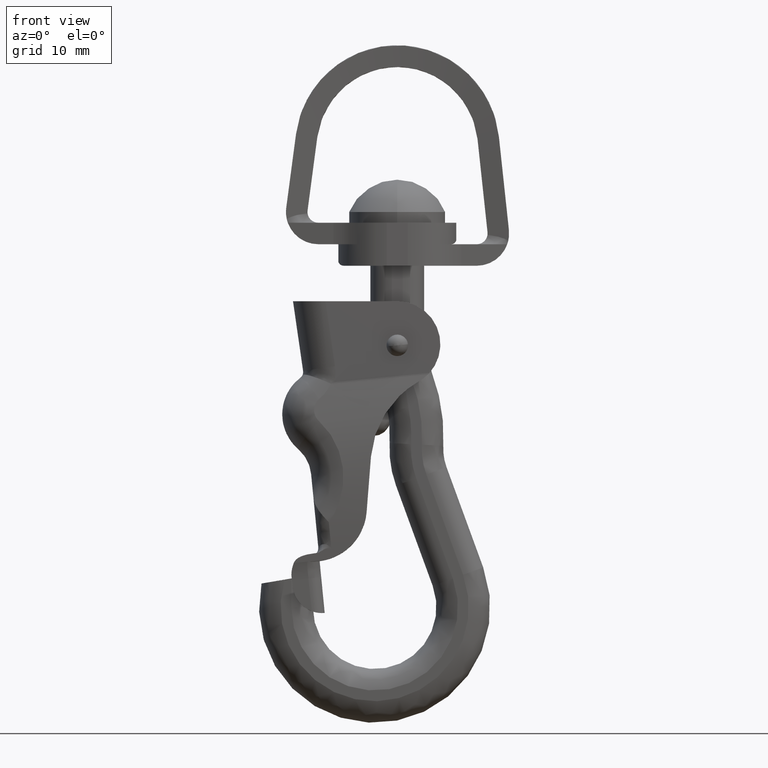
[diagram: clean part render]
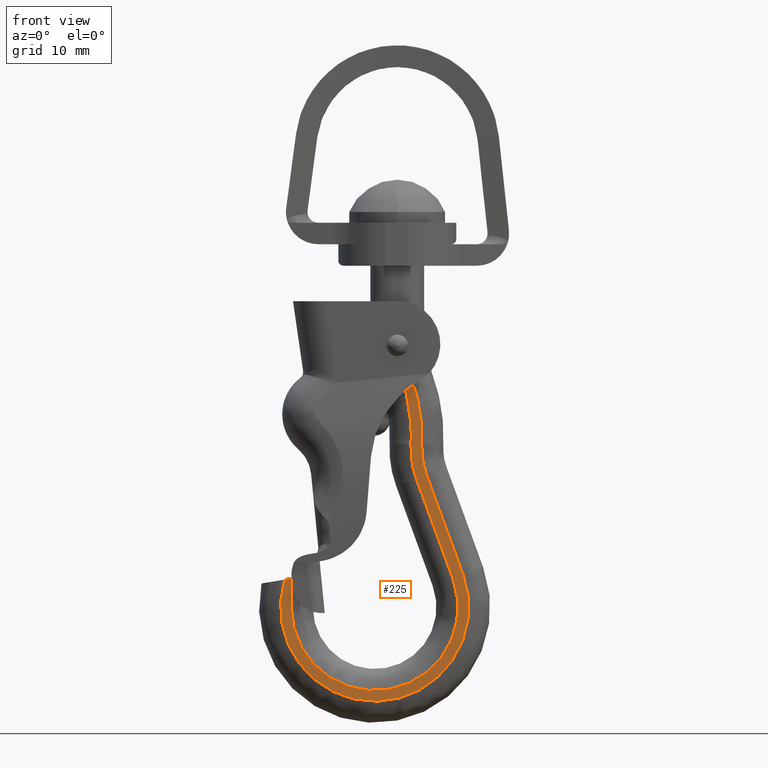
[diagram: same view with one face highlighted and labeled with its STEP entity id]
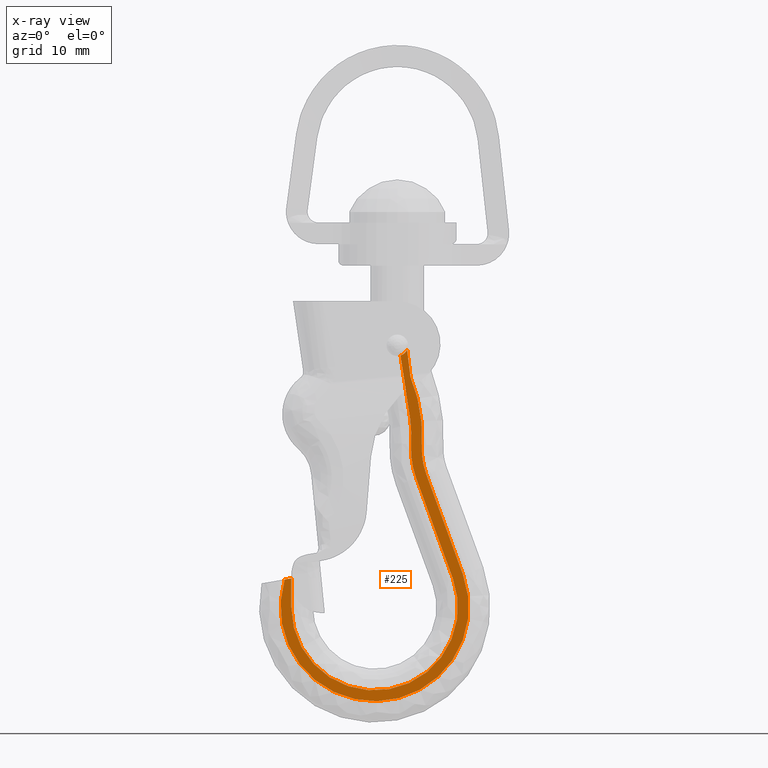
[diagram: x-ray of the same camera — body ghosted, the highlighted face saturated]
A machine part, front view. The second image highlights one B-rep face of the part: STEP entity #225.
The next image is the same camera in x-ray: the body ghosted, the highlighted face saturated — about 0% of this face is hidden behind the body in this view.
In plain terms, the highlighted planar face has unit normal (0, 1, 0).
Its self-contained STEP definition (entity closure, byte-faithful):
#225=ADVANCED_FACE('',(#1114),#1113,.F.);
#1113=PLANE('',#3144);
#1114=FACE_OUTER_BOUND('',#3145,.T.);
#3141=CARTESIAN_POINT('',(-1.64718113643E+01,-2.40000000000E+00,-4.83128493366E+01));
#3142=DIRECTION('',(-0.00000000000E+00,1.00000000000E+00,0.00000000000E+00));
#3143=DIRECTION('',(0.00000000000E+00,0.00000000000E+00,1.00000000000E+00));
#3144=AXIS2_PLACEMENT_3D('',#3141,#3142,#3143);
#3145=EDGE_LOOP('',(#5943,#5944,#5945,#5946,#5947,#5948,#5949,#5950,#5951,#5952,#5953,#5954,#5955));
#5943=ORIENTED_EDGE('',*,*,#6830,.T.);
#5944=ORIENTED_EDGE('',*,*,#6827,.T.);
#5945=ORIENTED_EDGE('',*,*,#6862,.F.);
#5946=ORIENTED_EDGE('',*,*,#6756,.T.);
#5947=ORIENTED_EDGE('',*,*,#6863,.T.);
#5948=ORIENTED_EDGE('',*,*,#6840,.T.);
#5949=ORIENTED_EDGE('',*,*,#6846,.T.);
#5950=ORIENTED_EDGE('',*,*,#6849,.T.);
#5951=ORIENTED_EDGE('',*,*,#6851,.T.);
#5952=ORIENTED_EDGE('',*,*,#6794,.T.);
#5953=ORIENTED_EDGE('',*,*,#6838,.T.);
#5954=ORIENTED_EDGE('',*,*,#6836,.T.);
#5955=ORIENTED_EDGE('',*,*,#6833,.T.);
#6756=EDGE_CURVE('',#8039,#8032,#8040,.T.);
#6794=EDGE_CURVE('',#8298,#8291,#8299,.T.);
#6827=EDGE_CURVE('',#8502,#8509,#8516,.T.);
#6830=EDGE_CURVE('',#8522,#8502,#8536,.T.);
#6833=EDGE_CURVE('',#8542,#8522,#8556,.T.);
#6836=EDGE_CURVE('',#8562,#8542,#8576,.T.);
#6838=EDGE_CURVE('',#8291,#8562,#8588,.T.);
#6840=EDGE_CURVE('',#8602,#8595,#8603,.T.);
#6846=EDGE_CURVE('',#8595,#8635,#8642,.T.);
#6849=EDGE_CURVE('',#8635,#8655,#8662,.T.);
#6851=EDGE_CURVE('',#8655,#8298,#8674,.T.);
#6862=EDGE_CURVE('',#8039,#8509,#8744,.T.);
#6863=EDGE_CURVE('',#8032,#8602,#8750,.T.);
#8032=VERTEX_POINT('',#11571);
#8039=VERTEX_POINT('',#11584);
#8040=LINE('',#11585,#11586);
#8291=VERTEX_POINT('',#11773);
#8298=VERTEX_POINT('',#11790);
#8299=LINE('',#11791,#11792);
#8502=VERTEX_POINT('',#11931);
#8509=VERTEX_POINT('',#11946);
#8516=LINE('',#11951,#11952);
#8522=VERTEX_POINT('',#11954);
#8536=CIRCLE('',#11967,1.48136324696E+01);
#8542=VERTEX_POINT('',#11968);
#8556=CIRCLE('',#11981,7.00000000000E+00);
#8562=VERTEX_POINT('',#11982);
#8576=LINE('',#11991,#11992);
#8588=CIRCLE('',#12001,8.75000000000E+00);
#8595=VERTEX_POINT('',#12003);
#8602=VERTEX_POINT('',#12008);
#8603=CIRCLE('',#12012,8.00000000000E+00);
#8635=VERTEX_POINT('',#12030);
#8642=LINE('',#12035,#12036);
#8655=VERTEX_POINT('',#12042);
#8662=CIRCLE('',#12050,7.75000000000E+00);
#8674=LINE('',#12055,#12056);
#8744=CIRCLE('',#12102,1.00000000000E+00);
#8750=CIRCLE('',#12106,1.38136285970E+01);
#11571=CARTESIAN_POINT('',(1.04028318750E+00,-2.40000000000E+00,-1.72029267933E+01));
#11584=CARTESIAN_POINT('',(2.90603773027E-01,-2.40000000000E+00,-1.23568434810E+01));
#11585=CARTESIAN_POINT('',(2.90603773027E-01,-2.40000000000E+00,-1.23568434810E+01));
#11586=VECTOR('',#11587,4.90372742863E+00);
#11587=DIRECTION('',(1.52879503477E-01,0.00000000000E+00,-9.88244836777E-01));
#11773=CARTESIAN_POINT('',(-1.04729762848E+01,-2.40000000000E+00,-3.31860759843E+01));
#11790=CARTESIAN_POINT('',(-9.85704575422E+00,-2.40000000000E+00,-3.30821357145E+01));
#11791=CARTESIAN_POINT('',(-9.85704575422E+00,-2.40000000000E+00,-3.30821357145E+01));
#11792=VECTOR('',#11793,6.24639094290E-01);
#11793=DIRECTION('',(-9.86058247328E-01,0.00000000000E+00,-1.66400519461E-01));
#11931=CARTESIAN_POINT('',(1.22345873814E+00,-2.40000000000E+00,-1.43249461418E+01));
#11946=CARTESIAN_POINT('',(9.15485179995E-01,-2.40000000000E+00,-1.18023516934E+01));
#11951=CARTESIAN_POINT('',(1.22345873814E+00,-2.40000000000E+00,-1.43249461418E+01));
#11952=VECTOR('',#11953,2.54132454902E+00);
#11953=DIRECTION('',(-1.21186236628E-01,0.00000000000E+00,9.92629788014E-01));
#11954=CARTESIAN_POINT('',(2.27984677652E+00,-2.40000000000E+00,-2.06414046377E+01));
#11964=CARTESIAN_POINT('',(-1.25136324696E+01,-2.40000000000E+00,-1.98689548083E+01));
#11965=DIRECTION('',(0.00000000000E+00,-1.00000000000E+00,0.00000000000E+00));
#11966=DIRECTION('',(-0.00000000000E+00,-0.00000000000E+00,-1.00000000000E+00));
#11967=AXIS2_PLACEMENT_3D('',#11964,#11965,#11966);
#11968=CARTESIAN_POINT('',(2.69637395531E+00,-2.40000000000E+00,-2.34112418426E+01));
#11978=CARTESIAN_POINT('',(9.27032361840E+00,-2.40000000000E+00,-2.10064163131E+01));
#11979=DIRECTION('',(-0.00000000000E+00,1.00000000000E+00,0.00000000000E+00));
#11980=DIRECTION('',(-0.00000000000E+00,-0.00000000000E+00,-1.00000000000E+00));
#11981=AXIS2_PLACEMENT_3D('',#11978,#11979,#11980);
#11982=CARTESIAN_POINT('',(6.11039132464E+00,-2.40000000000E+00,-3.27439680882E+01));
#11991=CARTESIAN_POINT('',(6.11039132464E+00,-2.40000000000E+00,-3.27439680882E+01));
#11992=VECTOR('',#11993,9.93756981226E+00);
#11993=DIRECTION('',(-3.43546504209E-01,0.00000000000E+00,9.39135666156E-01));
#11998=CARTESIAN_POINT('',(-2.10704575422E+00,-2.40000000000E+00,-3.57500000000E+01));
#11999=DIRECTION('',(0.00000000000E+00,-1.00000000000E+00,0.00000000000E+00));
#12000=DIRECTION('',(9.39135666156E-01,0.00000000000E+00,3.43546504209E-01));
#12001=AXIS2_PLACEMENT_3D('',#11998,#11999,#12000);
#12003=CARTESIAN_POINT('',(1.75723828915E+00,-2.40000000000E+00,-2.37547883468E+01));
#12008=CARTESIAN_POINT('',(1.28120722768E+00,-2.40000000000E+00,-2.05892601127E+01));
#12009=CARTESIAN_POINT('',(9.27032361840E+00,-2.40000000000E+00,-2.10064163131E+01));
#12010=DIRECTION('',(0.00000000000E+00,-1.00000000000E+00,0.00000000000E+00));
#12011=DIRECTION('',(-0.00000000000E+00,-0.00000000000E+00,-1.00000000000E+00));
#12012=AXIS2_PLACEMENT_3D('',#12009,#12010,#12011);
#12030=CARTESIAN_POINT('',(5.17125565848E+00,-2.40000000000E+00,-3.30875145924E+01));
#12035=CARTESIAN_POINT('',(1.75723828915E+00,-2.40000000000E+00,-2.37547883468E+01));
#12036=VECTOR('',#12037,9.93756981226E+00);
#12037=DIRECTION('',(3.43546504209E-01,0.00000000000E+00,-9.39135666156E-01));
#12042=CARTESIAN_POINT('',(-9.85704575422E+00,-2.40000000000E+00,-3.57500000000E+01));
#12047=CARTESIAN_POINT('',(-2.10704575422E+00,-2.40000000000E+00,-3.57500000000E+01));
#12048=DIRECTION('',(-0.00000000000E+00,1.00000000000E+00,0.00000000000E+00));
#12049=DIRECTION('',(9.39135666156E-01,0.00000000000E+00,3.43546504209E-01));
#12050=AXIS2_PLACEMENT_3D('',#12047,#12048,#12049);
#12055=CARTESIAN_POINT('',(-9.85704575422E+00,-2.40000000000E+00,-3.57500000000E+01));
#12056=VECTOR('',#12057,2.66786428549E+00);
#12057=DIRECTION('',(6.11902166196E-13,0.00000000000E+00,1.00000000000E+00));
#12099=CARTESIAN_POINT('',(-2.27373675443E-13,-2.40000000000E+00,-1.14000000000E+01));
#12100=DIRECTION('',(0.00000000000E+00,-1.00000000000E+00,0.00000000000E+00));
#12101=DIRECTION('',(-0.00000000000E+00,-0.00000000000E+00,-1.00000000000E+00));
#12102=AXIS2_PLACEMENT_3D('',#12099,#12100,#12101);
#12103=CARTESIAN_POINT('',(-1.25136324696E+01,-2.40000000000E+00,-1.98689548083E+01));
#12104=DIRECTION('',(-0.00000000000E+00,1.00000000000E+00,0.00000000000E+00));
#12105=DIRECTION('',(-0.00000000000E+00,-0.00000000000E+00,-1.00000000000E+00));
#12106=AXIS2_PLACEMENT_3D('',#12103,#12104,#12105);